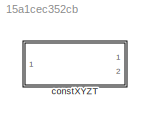
MODEL slx_15a1cec352cb
KIND library
CONFIG AbsTol = auto
CONFIG EnableMultiTasking = off
CONFIG FixedStep = auto
CONFIG MaxStep = auto
CONFIG MinStep = auto
CONFIG RelTol = 1e-3
CONFIG SampleTimeConstraint = Unconstrained
CONFIG Solver = VariableStepAuto
CONFIG SolverName = VariableStepAuto
CONFIG StartTime = 0.0
CONFIG StopTime = 10.0
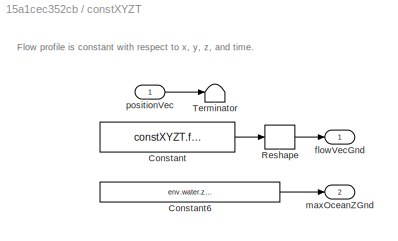
BLOCK [SubSystem] constXYZT
  Ports = [1, 2]
  RequestExecContextInheritance = off
BLOCK [Constant] constXYZT/Constant
  Value = constXYZT.flowVec.Value
BLOCK [Constant] constXYZT/Constant6
  Value = env.water.zGridPoints.Value(end)
BLOCK [Reshape] constXYZT/Reshape
  OutputDimensionality = Column vector (2-D)
  Ports = [1, 1]
BLOCK [Terminator] constXYZT/Terminator
BLOCK [Outport] constXYZT/flowVecGnd
  IconDisplay = Port number
BLOCK [Outport] constXYZT/maxOceanZGnd
  IconDisplay = Port number
  Port = 2
BLOCK [Inport] constXYZT/positionVec
  IconDisplay = Port number
ANNOTATION constXYZT: Flow profile is constant with respect to x, y, z, and time.
LINE constXYZT/Constant6:1 -> constXYZT/maxOceanZGnd:1
LINE constXYZT/Constant:1 -> constXYZT/Reshape:1
LINE constXYZT/Reshape:1 -> constXYZT/flowVecGnd:1
LINE constXYZT/positionVec:1 -> constXYZT/Terminator:1
